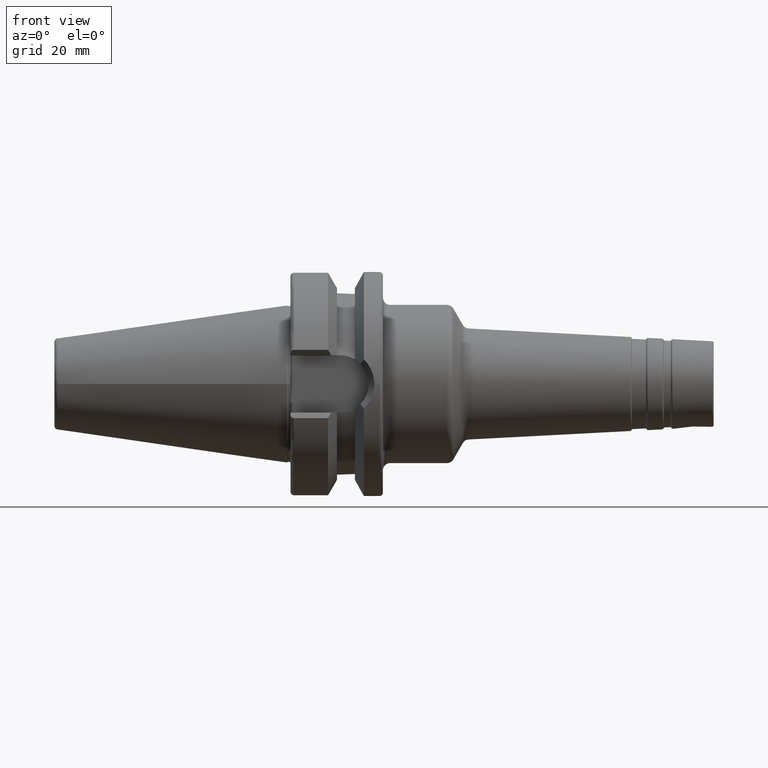
[diagram: clean part render]
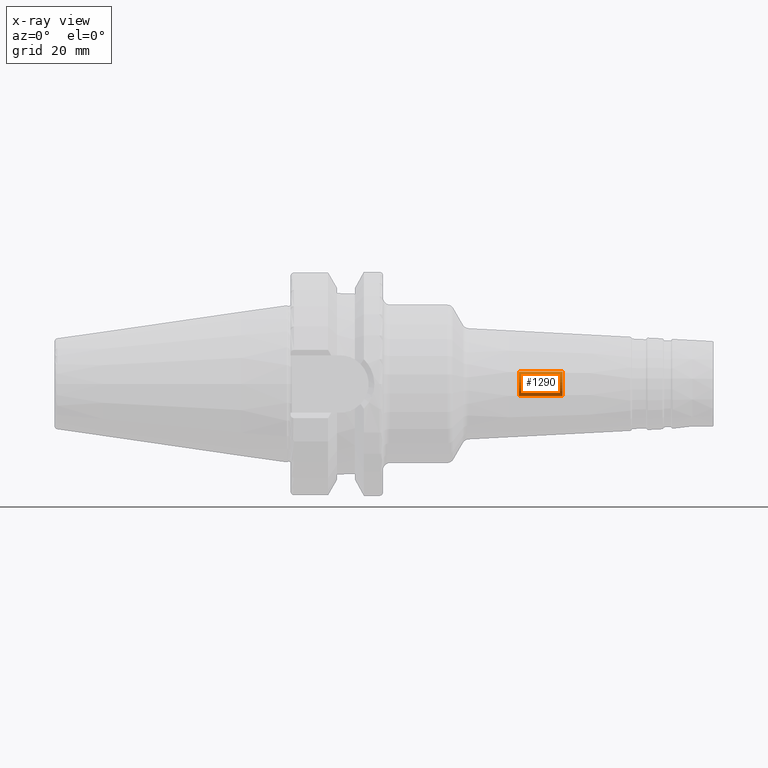
[diagram: x-ray — body ghosted, one internal face saturated and labeled with its STEP entity id]
A machine part, front view, then the same camera in x-ray: the body is ghosted and one INTERNAL B-rep face — a face not visible from any outside direction — is saturated and labeled: STEP entity #1290.
In plain terms, the highlighted cylindrical surface (bore or boss wall) has radius 3.4585 mm, axis along (1, 0, 0).
Its self-contained STEP definition (entity closure, byte-faithful):
#51=CYLINDRICAL_SURFACE('',#1435,3.4585);
#108=LINE('',#2079,#179);
#179=VECTOR('',#1692,3.4585);
#286=FACE_OUTER_BOUND('',#371,.T.);
#371=EDGE_LOOP('',(#947,#948,#949,#950,#951));
#472=CIRCLE('',#1436,3.4585);
#473=CIRCLE('',#1437,3.4585);
#474=CIRCLE('',#1438,3.4585);
#555=VERTEX_POINT('',#2076);
#556=VERTEX_POINT('',#2078);
#557=VERTEX_POINT('',#2080);
#700=EDGE_CURVE('',#555,#555,#472,.T.);
#701=EDGE_CURVE('',#555,#556,#108,.T.);
#702=EDGE_CURVE('',#557,#556,#473,.T.);
#703=EDGE_CURVE('',#556,#557,#474,.T.);
#947=ORIENTED_EDGE('',*,*,#700,.F.);
#948=ORIENTED_EDGE('',*,*,#701,.T.);
#949=ORIENTED_EDGE('',*,*,#702,.F.);
#950=ORIENTED_EDGE('',*,*,#703,.F.);
#951=ORIENTED_EDGE('',*,*,#701,.F.);
#1290=ADVANCED_FACE('',(#286),#51,.F.);
#1435=AXIS2_PLACEMENT_3D('',#2075,#1688,#1689);
#1436=AXIS2_PLACEMENT_3D('',#2077,#1690,#1691);
#1437=AXIS2_PLACEMENT_3D('',#2081,#1693,#1694);
#1438=AXIS2_PLACEMENT_3D('',#2082,#1695,#1696);
#1688=DIRECTION('center_axis',(1.,0.,0.));
#1689=DIRECTION('ref_axis',(0.,0.,-1.));
#1690=DIRECTION('center_axis',(-1.,0.,0.));
#1691=DIRECTION('ref_axis',(0.,0.,-1.));
#1692=DIRECTION('',(-1.,0.,0.));
#1693=DIRECTION('center_axis',(1.,0.,0.));
#1694=DIRECTION('ref_axis',(0.,0.,-1.));
#1695=DIRECTION('center_axis',(1.,0.,0.));
#1696=DIRECTION('ref_axis',(0.,0.,-1.));
#2075=CARTESIAN_POINT('Origin',(-128.202737029003,0.,0.));
#2076=CARTESIAN_POINT('',(77.5,-4.23544095485112E-16,3.4585));
#2077=CARTESIAN_POINT('Origin',(77.5,0.,0.));
#2078=CARTESIAN_POINT('',(65.2257963347172,-4.23544095485112E-16,3.4585));
#2079=CARTESIAN_POINT('',(-128.202737029003,-4.23544095485112E-16,3.4585));
#2080=CARTESIAN_POINT('',(65.2257963347172,-4.23544095485111E-16,-3.45849999999999));
#2081=CARTESIAN_POINT('Origin',(65.2257963347172,0.,0.));
#2082=CARTESIAN_POINT('Origin',(65.2257963347172,0.,0.));